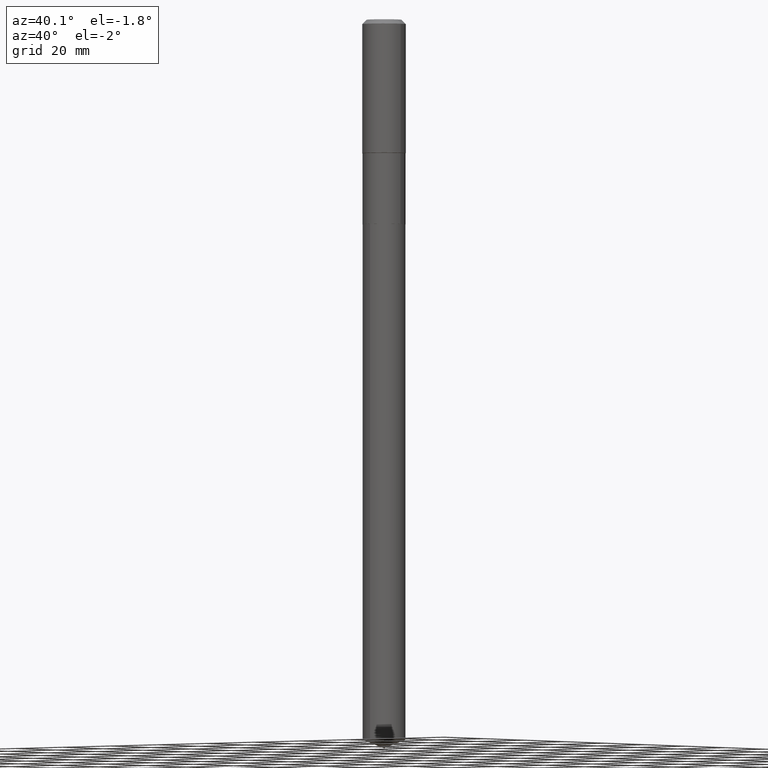
[diagram: clean part render]
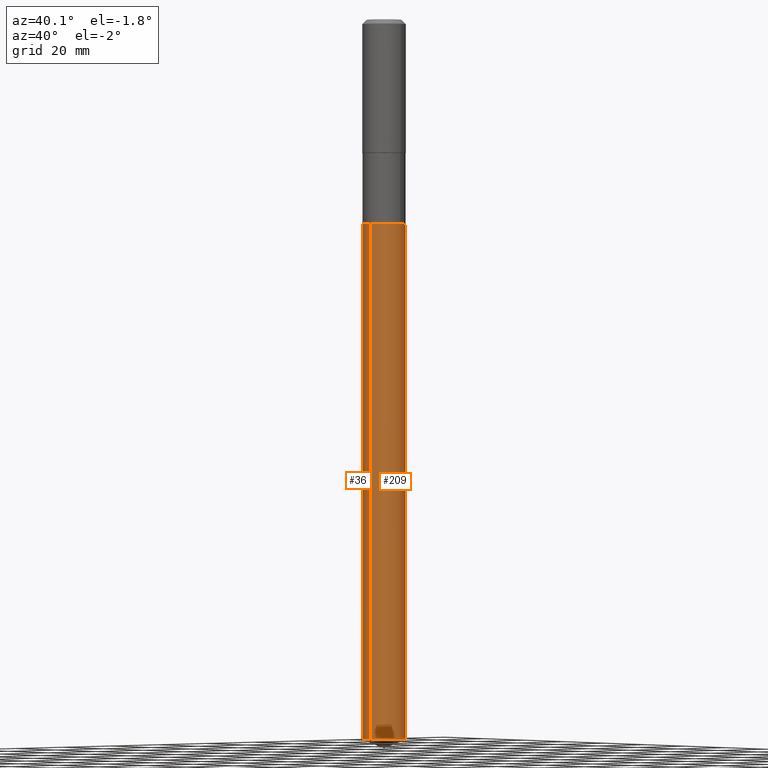
[diagram: same view with one multi-face feature highlighted, each face labeled with its STEP entity id]
A machine part, auxiliary view. The highlighted faces form ONE feature: a constant-radius fillet chain: 2 tangent blend faces with common blend radius 6.8999 mm. The faces share edges in the B-rep.
Their STEP definitions:
[1] entity #36 (Cylinder):
#5 = VECTOR ( 'NONE', #102, 39.37007874015748143 ) ;
#6 = VERTEX_POINT ( 'NONE', #210 ) ;
#18 = ORIENTED_EDGE ( 'NONE', *, *, #263, .T. ) ;
#21 = CARTESIAN_POINT ( 'NONE',  ( 1.930189341692375282E-15, 0.2716499999999909543, -2.586999999999999300 ) ) ;
#26 = DIRECTION ( 'NONE',  ( -6.982962677686265133E-15, -1.000000000000000000, 4.022599659362065925E-15 ) ) ;
#34 = CIRCLE ( 'NONE', #173, 0.2716500000000000026 ) ;
#36 = ADVANCED_FACE ( 'NONE', ( #129 ), #394, .T. ) ;
#50 = VERTEX_POINT ( 'NONE', #76 ) ;
#68 = DIRECTION ( 'NONE',  ( -2.445574674954933606E-29, 3.491329728739120153E-15, 1.000000000000000000 ) ) ;
#76 = CARTESIAN_POINT ( 'NONE',  ( -1.896921811393410905E-15, -0.2716500000000090509, -2.586999999999997080 ) ) ;
#96 = CARTESIAN_POINT ( 'NONE',  ( 6.326427801600944107E-29, -9.032462223587211297E-15, -2.586999999999998412 ) ) ;
#102 = DIRECTION ( 'NONE',  ( -2.445574674954933326E-29, 3.491329728739120153E-15, 1.000000000000000000 ) ) ;
#111 = AXIS2_PLACEMENT_3D ( 'NONE', #96, #250, #26 ) ;
#129 = FACE_OUTER_BOUND ( 'NONE', #480, .T. ) ;
#132 = CARTESIAN_POINT ( 'NONE',  ( 1.930189341692534632E-15, 0.2716499999999681947, -9.105994219299201831 ) ) ;
#146 = ORIENTED_EDGE ( 'NONE', *, *, #359, .F. ) ;
#150 = EDGE_CURVE ( 'NONE', #307, #6, #266, .T. ) ;
#171 = ORIENTED_EDGE ( 'NONE', *, *, #474, .F. ) ;
#173 = AXIS2_PLACEMENT_3D ( 'NONE', #448, #342, #419 ) ;
#193 = LINE ( 'NONE', #429, #251 ) ;
#199 = VERTEX_POINT ( 'NONE', #347 ) ;
#210 = CARTESIAN_POINT ( 'NONE',  ( -1.896921811393251161E-15, -0.2716500000000317550, -9.105994219299200054 ) ) ;
#214 = ORIENTED_EDGE ( 'NONE', *, *, #150, .T. ) ;
#249 = DIRECTION ( 'NONE',  ( -6.982962677686265133E-15, -1.000000000000000000, 4.022599659362065925E-15 ) ) ;
#250 = DIRECTION ( 'NONE',  ( -2.445574674954933606E-29, 3.491329728739120153E-15, 1.000000000000000000 ) ) ;
#251 = VECTOR ( 'NONE', #350, 39.37007874015748143 ) ;
#258 = CARTESIAN_POINT ( 'NONE',  ( 2.226911497049668646E-28, -3.179242054290498887E-14, -9.105994219299200054 ) ) ;
#263 = EDGE_CURVE ( 'NONE', #6, #50, #193, .T. ) ;
#266 = CIRCLE ( 'NONE', #345, 0.2716500000000000026 ) ;
#307 = VERTEX_POINT ( 'NONE', #132 ) ;
#342 = DIRECTION ( 'NONE',  ( -2.445574674954933606E-29, 3.491329728739120153E-15, 1.000000000000000000 ) ) ;
#345 = AXIS2_PLACEMENT_3D ( 'NONE', #258, #68, #249 ) ;
#347 = CARTESIAN_POINT ( 'NONE',  ( 1.930189341692536210E-15, 0.2716499999999909543, -2.586999999999999300 ) ) ;
#350 = DIRECTION ( 'NONE',  ( -2.445574674954933326E-29, 3.491329728739120153E-15, 1.000000000000000000 ) ) ;
#359 = EDGE_CURVE ( 'NONE', #307, #199, #481, .T. ) ;
#394 = CYLINDRICAL_SURFACE ( 'NONE', #111, 0.2716500000000000026 ) ;
#419 = DIRECTION ( 'NONE',  ( -6.982962677686265133E-15, -1.000000000000000000, 4.022599659362065925E-15 ) ) ;
#429 = CARTESIAN_POINT ( 'NONE',  ( -1.896921811393410905E-15, -0.2716500000000090509, -2.586999999999997080 ) ) ;
#448 = CARTESIAN_POINT ( 'NONE',  ( 6.326427801600944107E-29, -9.032462223587211297E-15, -2.586999999999998412 ) ) ;
#474 = EDGE_CURVE ( 'NONE', #199, #50, #34, .T. ) ;
#480 = EDGE_LOOP ( 'NONE', ( #146, #214, #18, #171 ) ) ;
#481 = LINE ( 'NONE', #21, #5 ) ;
[2] entity #209 (Cylinder):
#5 = VECTOR ( 'NONE', #102, 39.37007874015748143 ) ;
#6 = VERTEX_POINT ( 'NONE', #210 ) ;
#21 = CARTESIAN_POINT ( 'NONE',  ( 1.930189341692375282E-15, 0.2716499999999909543, -2.586999999999999300 ) ) ;
#45 = DIRECTION ( 'NONE',  ( -6.982962677686265133E-15, -1.000000000000000000, 4.022599659362065925E-15 ) ) ;
#50 = VERTEX_POINT ( 'NONE', #76 ) ;
#59 = EDGE_CURVE ( 'NONE', #50, #199, #277, .T. ) ;
#60 = AXIS2_PLACEMENT_3D ( 'NONE', #167, #323, #45 ) ;
#70 = DIRECTION ( 'NONE',  ( -6.982962677686265133E-15, -1.000000000000000000, 4.022599659362065925E-15 ) ) ;
#76 = CARTESIAN_POINT ( 'NONE',  ( -1.896921811393410905E-15, -0.2716500000000090509, -2.586999999999997080 ) ) ;
#84 = EDGE_LOOP ( 'NONE', ( #93, #423, #354, #124 ) ) ;
#89 = CYLINDRICAL_SURFACE ( 'NONE', #390, 0.2716500000000000026 ) ;
#93 = ORIENTED_EDGE ( 'NONE', *, *, #178, .T. ) ;
#98 = AXIS2_PLACEMENT_3D ( 'NONE', #259, #105, #70 ) ;
#102 = DIRECTION ( 'NONE',  ( -2.445574674954933326E-29, 3.491329728739120153E-15, 1.000000000000000000 ) ) ;
#105 = DIRECTION ( 'NONE',  ( -2.445574674954933606E-29, 3.491329728739120153E-15, 1.000000000000000000 ) ) ;
#124 = ORIENTED_EDGE ( 'NONE', *, *, #263, .F. ) ;
#132 = CARTESIAN_POINT ( 'NONE',  ( 1.930189341692534632E-15, 0.2716499999999681947, -9.105994219299201831 ) ) ;
#149 = FACE_OUTER_BOUND ( 'NONE', #84, .T. ) ;
#167 = CARTESIAN_POINT ( 'NONE',  ( 2.226911497049668646E-28, -3.179242054290498887E-14, -9.105994219299200054 ) ) ;
#178 = EDGE_CURVE ( 'NONE', #6, #307, #375, .T. ) ;
#189 = DIRECTION ( 'NONE',  ( -6.982962677686265133E-15, -1.000000000000000000, 4.022599659362065925E-15 ) ) ;
#193 = LINE ( 'NONE', #429, #251 ) ;
#199 = VERTEX_POINT ( 'NONE', #347 ) ;
#209 = ADVANCED_FACE ( 'NONE', ( #149 ), #89, .T. ) ;
#210 = CARTESIAN_POINT ( 'NONE',  ( -1.896921811393251161E-15, -0.2716500000000317550, -9.105994219299200054 ) ) ;
#251 = VECTOR ( 'NONE', #350, 39.37007874015748143 ) ;
#259 = CARTESIAN_POINT ( 'NONE',  ( 6.326427801600944107E-29, -9.032462223587211297E-15, -2.586999999999998412 ) ) ;
#263 = EDGE_CURVE ( 'NONE', #6, #50, #193, .T. ) ;
#277 = CIRCLE ( 'NONE', #98, 0.2716500000000000026 ) ;
#307 = VERTEX_POINT ( 'NONE', #132 ) ;
#323 = DIRECTION ( 'NONE',  ( -2.445574674954933606E-29, 3.491329728739120153E-15, 1.000000000000000000 ) ) ;
#347 = CARTESIAN_POINT ( 'NONE',  ( 1.930189341692536210E-15, 0.2716499999999909543, -2.586999999999999300 ) ) ;
#350 = DIRECTION ( 'NONE',  ( -2.445574674954933326E-29, 3.491329728739120153E-15, 1.000000000000000000 ) ) ;
#354 = ORIENTED_EDGE ( 'NONE', *, *, #59, .F. ) ;
#359 = EDGE_CURVE ( 'NONE', #307, #199, #481, .T. ) ;
#375 = CIRCLE ( 'NONE', #60, 0.2716500000000000026 ) ;
#385 = CARTESIAN_POINT ( 'NONE',  ( 6.326427801600944107E-29, -9.032462223587211297E-15, -2.586999999999998412 ) ) ;
#386 = DIRECTION ( 'NONE',  ( -2.445574674954933606E-29, 3.491329728739120153E-15, 1.000000000000000000 ) ) ;
#390 = AXIS2_PLACEMENT_3D ( 'NONE', #385, #386, #189 ) ;
#423 = ORIENTED_EDGE ( 'NONE', *, *, #359, .T. ) ;
#429 = CARTESIAN_POINT ( 'NONE',  ( -1.896921811393410905E-15, -0.2716500000000090509, -2.586999999999997080 ) ) ;
#481 = LINE ( 'NONE', #21, #5 ) ;